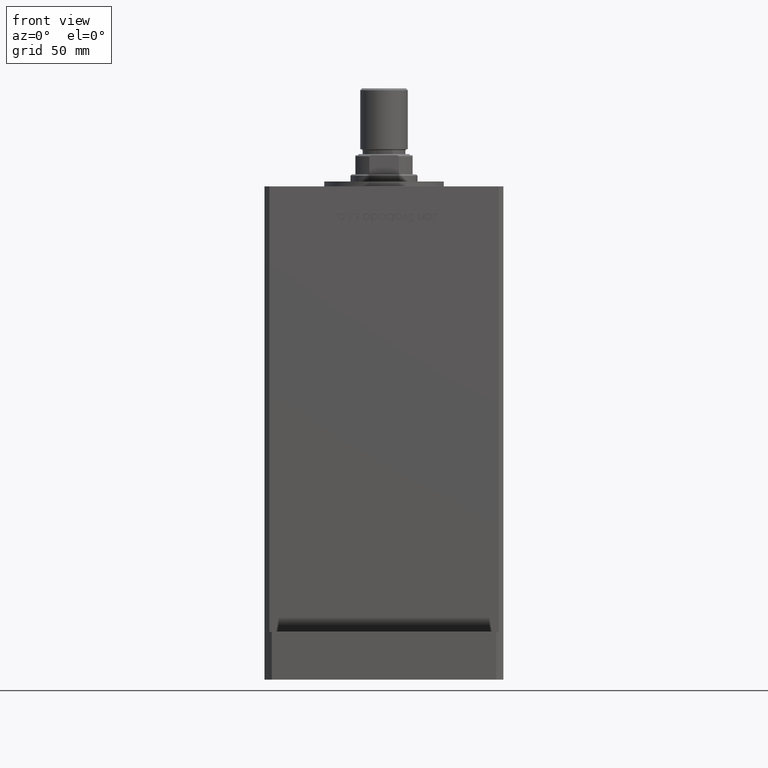
[diagram: clean part render]
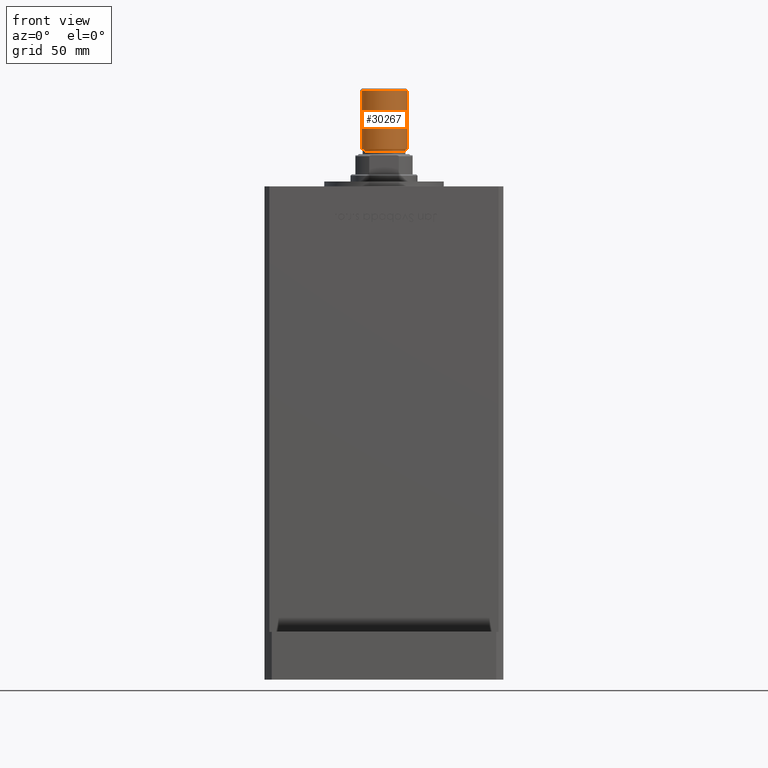
[diagram: same view with one face highlighted and labeled with its STEP entity id]
A machine part, front view. The second image highlights one B-rep face of the part: STEP entity #30267.
In plain terms, the highlighted cylindrical surface (edge-blend (fillet) strip) has radius 10 mm, axis along (0, 0, 1).
Its self-contained STEP definition (entity closure, byte-faithful):
#1202 = DIRECTION ( 'NONE',  ( -0.000000000000000000, -0.000000000000000000, -1.000000000000000000 ) ) ;
#3696 = CARTESIAN_POINT ( 'NONE',  ( 0.000000000000000000, 0.000000000000000000, 25.50000000000000000 ) ) ;
#5505 = CARTESIAN_POINT ( 'NONE',  ( 10.00000000000000000, 1.224646799147353256E-15, 0.7999999999999986011 ) ) ;
#7033 = DIRECTION ( 'NONE',  ( 0.000000000000000000, 0.000000000000000000, 1.000000000000000000 ) ) ;
#7195 = ORIENTED_EDGE ( 'NONE', *, *, #43537, .T. ) ;
#8331 = DIRECTION ( 'NONE',  ( -0.000000000000000000, -0.000000000000000000, -1.000000000000000000 ) ) ;
#9332 = VERTEX_POINT ( 'NONE', #30438 ) ;
#10121 = ORIENTED_EDGE ( 'NONE', *, *, #11977, .T. ) ;
#10706 = VERTEX_POINT ( 'NONE', #12287 ) ;
#11249 = CIRCLE ( 'NONE', #40991, 10.00000000000000000 ) ;
#11977 = EDGE_CURVE ( 'NONE', #51921, #9332, #45838, .T. ) ;
#12190 = DIRECTION ( 'NONE',  ( -1.000000000000000000, 0.000000000000000000, 0.000000000000000000 ) ) ;
#12287 = CARTESIAN_POINT ( 'NONE',  ( 10.00000000000000000, 1.224646799147353256E-15, 25.50000000000000000 ) ) ;
#15241 = CARTESIAN_POINT ( 'NONE',  ( 0.000000000000000000, 0.000000000000000000, 25.50000000000000000 ) ) ;
#16571 = FACE_OUTER_BOUND ( 'NONE', #25109, .T. ) ;
#18030 = VERTEX_POINT ( 'NONE', #5505 ) ;
#18184 = LINE ( 'NONE', #35147, #50964 ) ;
#20258 = ORIENTED_EDGE ( 'NONE', *, *, #24880, .F. ) ;
#20395 = AXIS2_PLACEMENT_3D ( 'NONE', #3696, #21213, #12190 ) ;
#21213 = DIRECTION ( 'NONE',  ( -0.000000000000000000, -0.000000000000000000, -1.000000000000000000 ) ) ;
#21454 = CARTESIAN_POINT ( 'NONE',  ( -10.00000000000000000, 0.000000000000000000, 25.50000000000000000 ) ) ;
#22633 = CARTESIAN_POINT ( 'NONE',  ( -10.00000000000000000, 0.000000000000000000, 25.50000000000000000 ) ) ;
#24880 = EDGE_CURVE ( 'NONE', #10706, #18030, #18184, .T. ) ;
#25109 = EDGE_LOOP ( 'NONE', ( #20258, #33661, #10121, #7195 ) ) ;
#27468 = DIRECTION ( 'NONE',  ( 1.000000000000000000, 0.000000000000000000, 0.000000000000000000 ) ) ;
#29166 = CYLINDRICAL_SURFACE ( 'NONE', #20395, 10.00000000000000000 ) ;
#30072 = VECTOR ( 'NONE', #8331, 1000.000000000000000 ) ;
#30267 = ADVANCED_FACE ( 'NONE', ( #16571 ), #29166, .T. ) ;
#30438 = CARTESIAN_POINT ( 'NONE',  ( -10.00000000000000000, 0.000000000000000000, 0.7999999999999986011 ) ) ;
#31851 = CARTESIAN_POINT ( 'NONE',  ( 0.000000000000000000, 0.000000000000000000, 0.7999999999999986011 ) ) ;
#32054 = CIRCLE ( 'NONE', #52133, 10.00000000000000000 ) ;
#33661 = ORIENTED_EDGE ( 'NONE', *, *, #49736, .F. ) ;
#35147 = CARTESIAN_POINT ( 'NONE',  ( 10.00000000000000000, 1.224646799147353256E-15, 25.50000000000000000 ) ) ;
#36329 = DIRECTION ( 'NONE',  ( 1.000000000000000000, 0.000000000000000000, 0.000000000000000000 ) ) ;
#40991 = AXIS2_PLACEMENT_3D ( 'NONE', #15241, #7033, #36329 ) ;
#43069 = DIRECTION ( 'NONE',  ( -0.000000000000000000, -0.000000000000000000, 1.000000000000000000 ) ) ;
#43537 = EDGE_CURVE ( 'NONE', #9332, #18030, #32054, .T. ) ;
#45838 = LINE ( 'NONE', #21454, #30072 ) ;
#49736 = EDGE_CURVE ( 'NONE', #51921, #10706, #11249, .T. ) ;
#50964 = VECTOR ( 'NONE', #1202, 1000.000000000000000 ) ;
#51921 = VERTEX_POINT ( 'NONE', #22633 ) ;
#52133 = AXIS2_PLACEMENT_3D ( 'NONE', #31851, #43069, #27468 ) ;